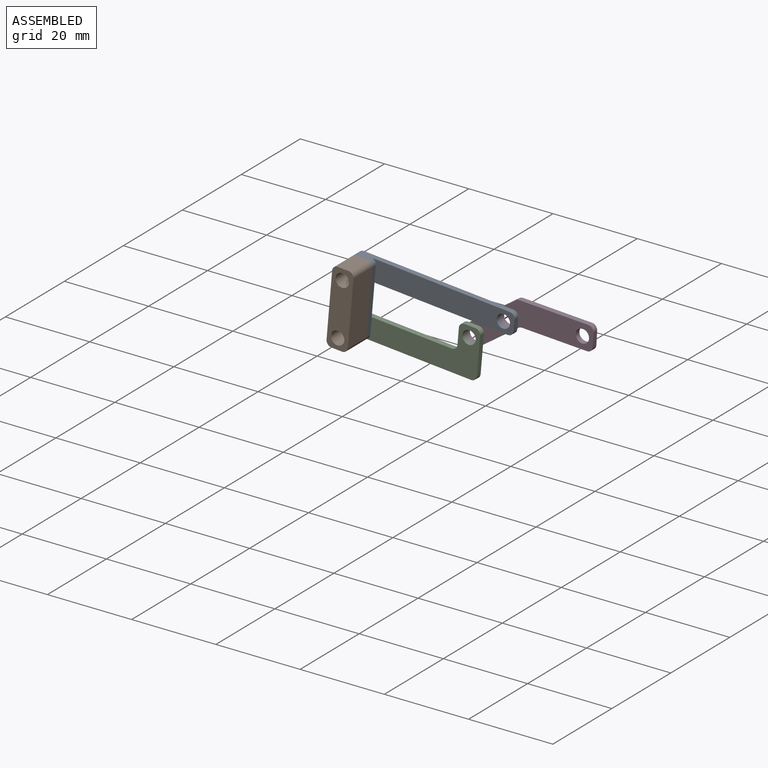
[diagram: assembled view]
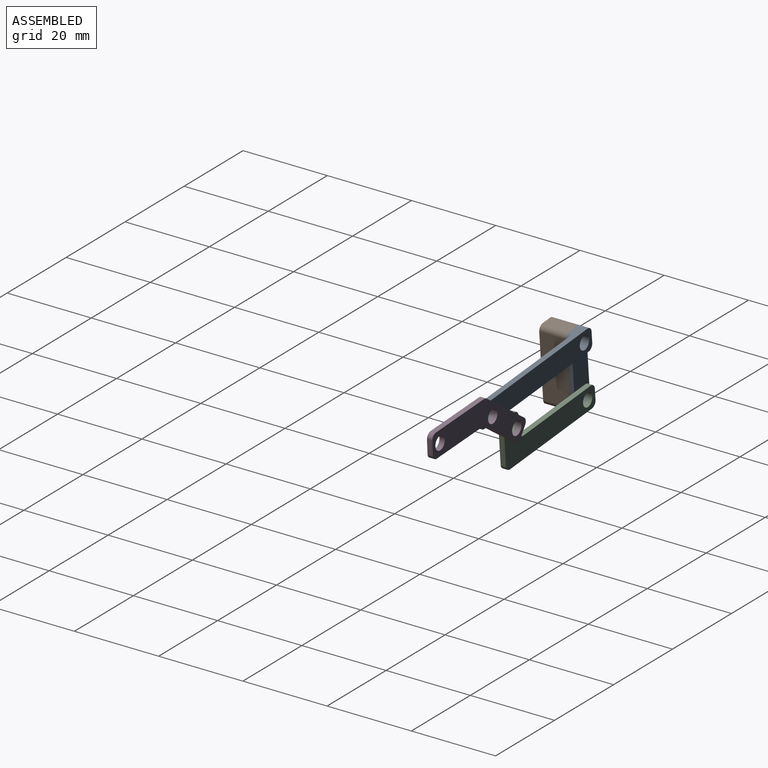
[diagram: assembled view, second angle]
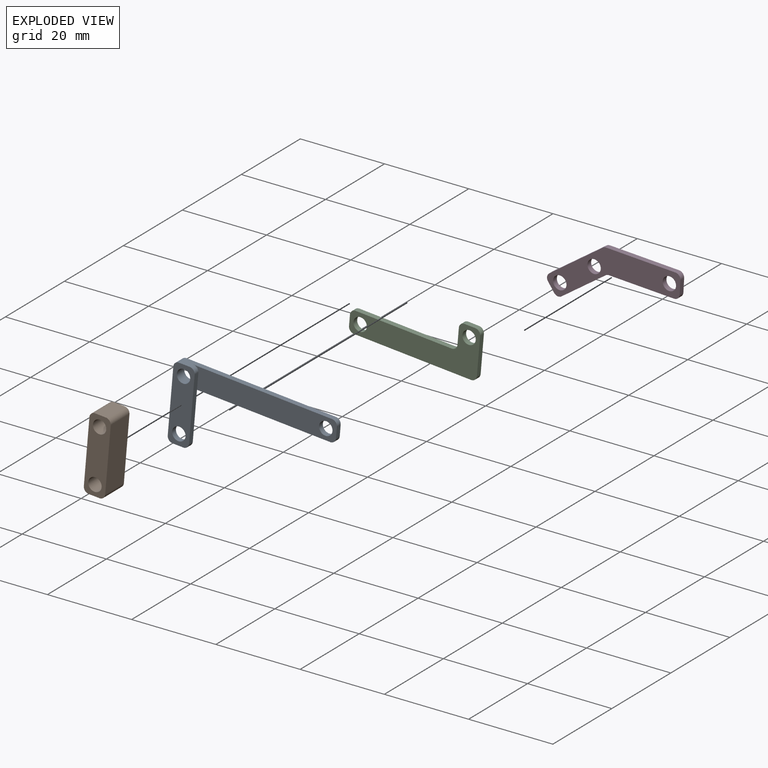
[diagram: exploded view]
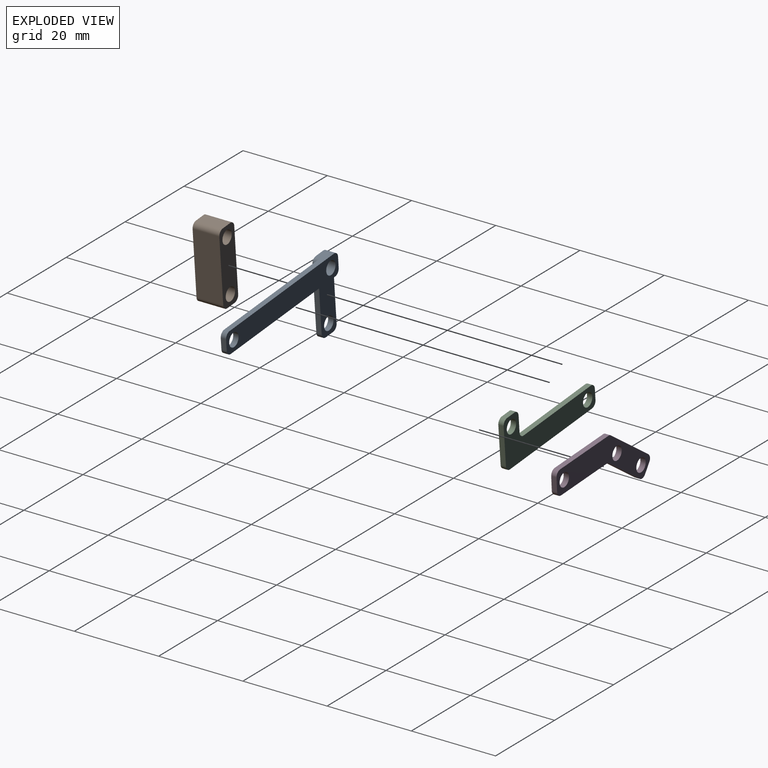
[diagram: exploded view, second angle]
ASSEMBLY  parts=4 mates=4
PART A: 20 faces, bbox 38.1x2.5x17.8 mm
  f0: plane 34.29x5.08mm, normal (0,-1,0), area 159.5mm2, adj f1,f5,f6,f7,f8,f10,f13,f14
  f1: plane 35.56x2.54mm, normal (0,0,1), area 48.4mm2, adj f0,f2,f10,f11,f14,f19
  f2: cylinder r=1.27mm len=2.54mm, axis (0,1,0), area 5.1mm2, adj f1,f3,f11,f19
  f3: plane 15.24x2.54mm, normal (-1,0,0), area 22.6mm2, adj f2,f4,f11,f12,f15,f19
  f4: cylinder r=1.27mm len=1.27mm, axis (0,1,0), area 2.5mm2, adj f3,f5,f11,f12
  f5: plane 35.56x1.27mm, normal (0,0,-1), area 45.2mm2, adj f0,f4,f6,f11,f12
  f6: cylinder r=1.27mm len=1.27mm, axis (0,1,0), area 2.5mm2, adj f0,f5,f7,f11
  f7: plane 2.54x1.27mm, normal (1,0,0), area 3.2mm2, adj f0,f6,f10,f11
  f8: cylinder r=1.59mm len=3.18mm, axis (0,1,0), area 12.7mm2, adj f0,f11
  f9: cylinder r=1.59mm len=3.18mm, axis (0,1,0), area 25.3mm2, adj f11,f19
  f10: cylinder r=1.27mm len=1.27mm, axis (0,1,0), area 2.5mm2, adj f0,f1,f7,f11
  f11: plane 38.1x5.08mm, normal (0,1,0), area 176.3mm2, adj f1,f2,f3,f4,f5,f6,f7,f8
  f12: plane 13.97x5.08mm, normal (0,1,0), area 56.3mm2, adj f3,f4,f5,f13,f15,f16,f17,f18
  f13: plane 15.24x1.27mm, normal (1,0,0), area 19.4mm2, adj f0,f12,f14,f17,f19
  f14: cylinder r=1.27mm len=1.27mm, axis (0,1,0), area 2.5mm2, adj f0,f1,f13,f19
  f15: cylinder r=1.27mm len=1.27mm, axis (0,1,0), area 2.5mm2, adj f3,f12,f16,f19
  f16: plane 2.54x1.27mm, normal (0,0,-1), area 3.2mm2, adj f12,f15,f17,f19
  f17: cylinder r=1.27mm len=1.27mm, axis (0,1,0), area 2.5mm2, adj f12,f13,f16,f19
  f18: cylinder r=1.59mm len=3.18mm, axis (0,1,0), area 12.7mm2, adj f12,f19
  f19: plane 17.78x5.08mm, normal (0,-1,0), area 73.1mm2, adj f1,f2,f3,f9,f13,f14,f15,f16
PART B: 12 faces, bbox 5.1x6.4x17.8 mm
  f0: plane 15.24x6.35mm, normal (1,0,0), area 96.8mm2, adj f1,f8,f10,f11
  f1: cylinder r=1.27mm len=6.35mm, axis (0,1,0), area 12.7mm2, adj f0,f2,f10,f11
  f2: plane 6.35x2.54mm, normal (0,0,1), area 16.1mm2, adj f1,f3,f10,f11
  f3: cylinder r=1.27mm len=6.35mm, axis (0,1,0), area 12.7mm2, adj f2,f4,f10,f11
  f4: plane 15.24x6.35mm, normal (-1,0,0), area 96.8mm2, adj f3,f5,f10,f11
  f5: cylinder r=1.27mm len=6.35mm, axis (0,1,0), area 12.7mm2, adj f4,f6,f10,f11
  f6: plane 6.35x2.54mm, normal (0,0,-1), area 16.1mm2, adj f5,f8,f10,f11
  f7: cylinder r=1.59mm len=6.35mm, axis (0,1,0), area 63.3mm2, adj f10,f11
  f8: cylinder r=1.27mm len=6.35mm, axis (0,1,0), area 12.7mm2, adj f0,f6,f10,f11
  f9: cylinder r=1.59mm len=6.35mm, axis (0,1,0), area 63.3mm2, adj f10,f11
  f10: plane 17.78x5.08mm, normal (0,-1,0), area 73.1mm2, adj f0,f1,f2,f3,f4,f5,f6,f7
  f11: plane 17.78x5.08mm, normal (0,1,0), area 73.1mm2, adj f0,f1,f2,f3,f4,f5,f6,f7
PART C: 16 faces, bbox 30.5x1.3x11.4 mm
  f0: plane 27.94x1.27mm, normal (0,0,-1), area 35.5mm2, adj f1,f12,f14,f15
  f1: cylinder r=1.27mm len=1.27mm, axis (0,-1,0), area 2.5mm2, adj f0,f2,f14,f15
  f2: plane 2.54x1.27mm, normal (-1,0,0), area 3.2mm2, adj f1,f3,f14,f15
  f3: cylinder r=1.27mm len=1.27mm, axis (0,-1,0), area 2.5mm2, adj f2,f4,f14,f15
  f4: plane 22.86x1.27mm, normal (0,0,1), area 29mm2, adj f3,f5,f14,f15
  f5: cylinder r=1.27mm len=1.27mm, axis (0,-1,0), area 2.5mm2, adj f4,f6,f14,f15
  f6: plane 3.81x1.27mm, normal (-1,0,0), area 4.8mm2, adj f5,f7,f14,f15
  f7: cylinder r=1.27mm len=1.27mm, axis (0,-1,0), area 2.5mm2, adj f6,f8,f14,f15
  f8: plane 2.54x1.27mm, normal (0,0,1), area 3.2mm2, adj f7,f9,f14,f15
  f9: cylinder r=1.27mm len=1.27mm, axis (0,-1,0), area 2.5mm2, adj f8,f10,f14,f15
  f10: plane 8.89x1.27mm, normal (1,0,0), area 11.3mm2, adj f9,f12,f14,f15
  f11: cylinder r=1.59mm len=3.18mm, axis (0,-1,0), area 12.7mm2, adj f14,f15
  f12: cylinder r=1.27mm len=1.27mm, axis (0,-1,0), area 2.5mm2, adj f0,f10,f14,f15
  f13: cylinder r=1.59mm len=3.18mm, axis (0,-1,0), area 12.7mm2, adj f14,f15
  f14: plane 30.48x11.43mm, normal (0,1,0), area 169.9mm2, adj f0,f1,f2,f3,f4,f5,f6,f7
  f15: plane 30.48x11.43mm, normal (0,-1,0), area 169.9mm2, adj f0,f1,f2,f3,f4,f5,f6,f7
PART D: 17 faces, bbox 31x1.3x15 mm
  f0: plane 9.78x8.21mm, normal (0.64,0,-0.77), area 16.2mm2, adj f1,f12,f14,f15
  f1: cylinder r=1.27mm len=1.79mm, axis (0,-1,0), area 2.5mm2, adj f0,f2,f14,f15
  f2: plane 1.95x1.63mm, normal (-0.77,0,-0.64), area 3.2mm2, adj f1,f3,f14,f15
  f3: cylinder r=1.27mm len=1.79mm, axis (0,-1,0), area 2.5mm2, adj f2,f4,f14,f15
  f4: plane 11.92x10mm, normal (-0.64,0,0.77), area 19.8mm2, adj f3,f5,f14,f15
  f5: cylinder r=1.27mm len=1.27mm, axis (0,-1,0), area 1.1mm2, adj f4,f6,f14,f15
  f6: plane 16.42x1.27mm, normal (-0.03,0,1), area 20.9mm2, adj f5,f7,f14,f15
  f7: cylinder r=1.27mm len=1.31mm, axis (0,-1,0), area 2.5mm2, adj f6,f8,f14,f15
  f8: plane 3.17x1.27mm, normal (1,0,0.03), area 4mm2, adj f7,f9,f14,f15
  f9: cylinder r=1.27mm len=1.31mm, axis (0,-1,0), area 2.5mm2, adj f8,f10,f14,f15
  f10: plane 15.46x1.27mm, normal (0.03,0,-1), area 19.6mm2, adj f9,f12,f14,f15
  f11: cylinder r=1.59mm len=3.18mm, axis (0,-1,0), area 12.7mm2, adj f14,f15
  f12: cylinder r=1.27mm len=1.27mm, axis (0,-1,0), area 1.1mm2, adj f0,f10,f14,f15
  f13: cylinder r=1.59mm len=3.18mm, axis (0,-1,0), area 12.7mm2, adj f14,f15
  f14: plane 30.97x14.97mm, normal (0,1,0), area 156.4mm2, adj f0,f1,f2,f3,f4,f5,f6,f7
  f15: plane 30.97x14.97mm, normal (0,-1,0), area 156.4mm2, adj f0,f1,f2,f3,f4,f5,f6,f7
  f16: cylinder r=1.59mm len=3.18mm, axis (0,-1,0), area 12.7mm2, adj f14,f15
PLACE A rot(axis=(0,1,0),5deg) t=(-5.33,7.81,-11.96)mm
PLACE B rot(axis=(0,1,0),5deg) t=(-5.33,7.81,-11.96)mm
PLACE C rot(axis=(0,1,0),5deg) t=(-5.33,7.81,-11.96)mm
PLACE D rot(axis=(0,1,0),5deg) t=(-5.33,7.81,-11.96)mm
MATE revolute D.f11 <-> C.f11  axis (0,-1,0) through (-8.49,7.81,21.65)mm
MATE planar B.f11 <-> A.f19  axis (0,1,0) through (-33.8,5.27,23.86)mm
MATE revolute D.f16 <-> A.f8  axis (0,-1,0) through (-0.35,7.81,27.31)mm
MATE revolute C.f13 <-> A.f18  axis (0,-1,0) through (-34.35,6.54,17.54)mm
